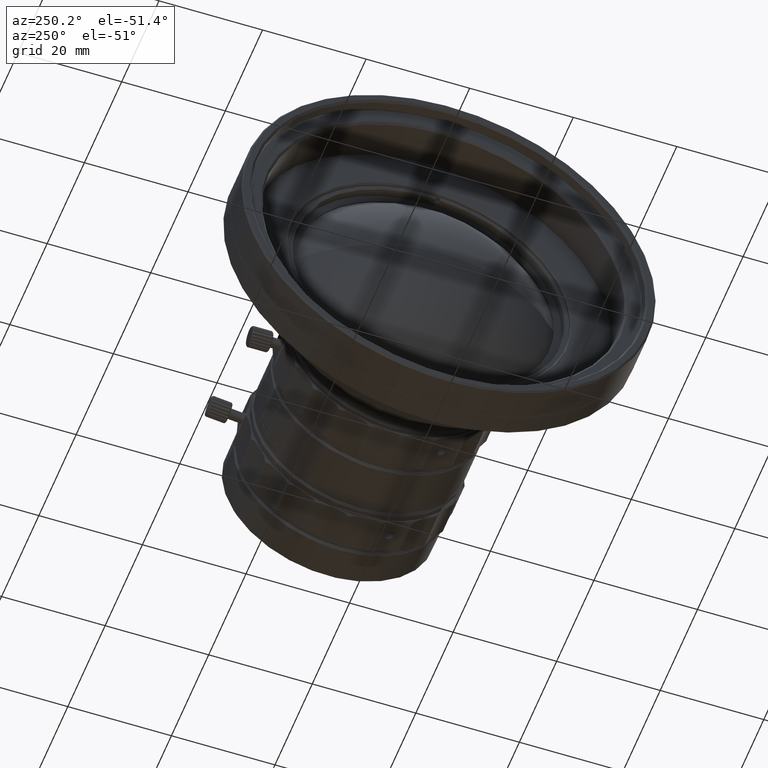
[diagram: clean part render]
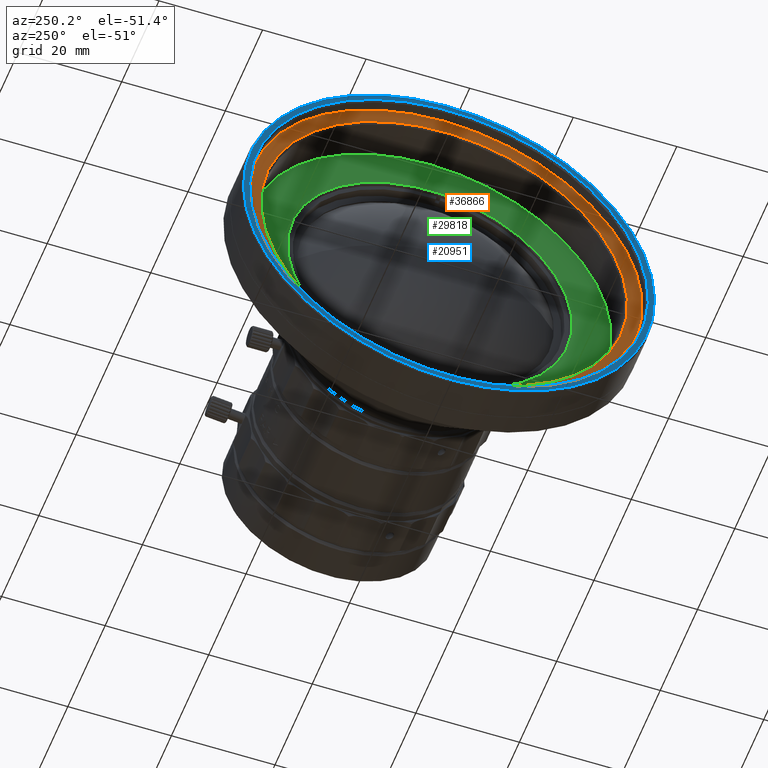
[diagram: same view with three faces highlighted in distinct colors, each labeled with its STEP entity id]
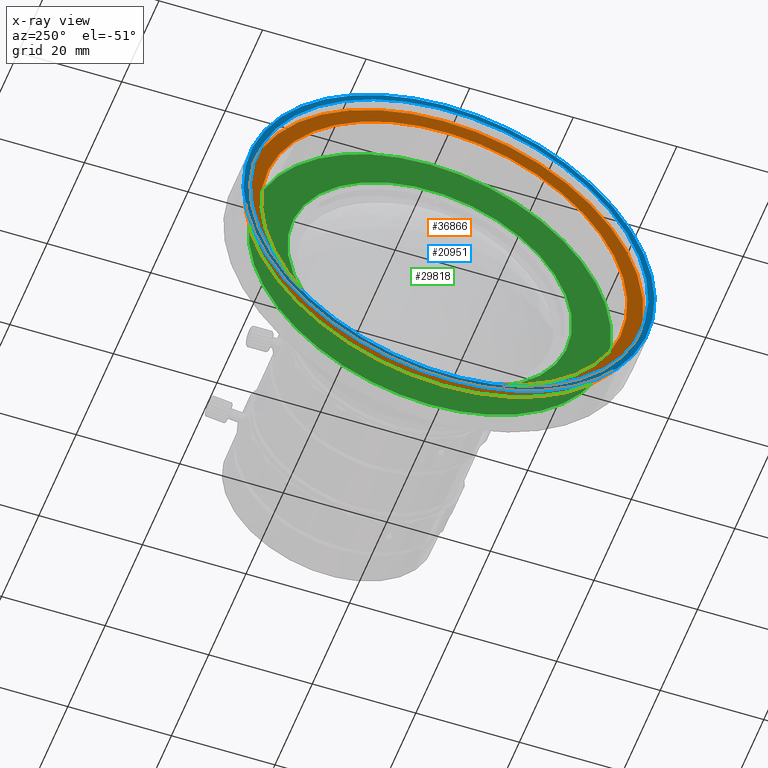
[diagram: x-ray of the same camera — body ghosted, the three highlighted faces saturated]
A machine part, auxiliary view with three faces highlighted in distinct colors.
The next image is the same camera in x-ray (body ghosted, the three faces saturated) — at least one of them is partly hidden behind the body in this view.
Their STEP definitions:

[orange] entity #36866 — the highlighted planar face has unit normal (-1, 0, 0).
#4234 = PLANE ( 'NONE',  #65667 ) ;
#7886 = AXIS2_PLACEMENT_3D ( 'NONE', #25317, #47655, #24533 ) ;
#8384 = EDGE_LOOP ( 'NONE', ( #40853, #56863 ) ) ;
#9079 = AXIS2_PLACEMENT_3D ( 'NONE', #66583, #30901, #31692 ) ;
#9748 = DIRECTION ( 'NONE',  ( 0.000000000000000000, 0.000000000000000000, 1.000000000000000000 ) ) ;
#15186 = AXIS2_PLACEMENT_3D ( 'NONE', #73015, #44728, #55321 ) ;
#15634 = FACE_OUTER_BOUND ( 'NONE', #8384, .T. ) ;
#21613 = CARTESIAN_POINT ( 'NONE',  ( -10.75999999567530629, -10.40094259489243278, -33.83755890769253938 ) ) ;
#22888 = CIRCLE ( 'NONE', #9079, 35.39999999727599800 ) ;
#24533 = DIRECTION ( 'NONE',  ( 4.900348802571447981E-17, -5.641050496054859293E-10, -1.000000000000000000 ) ) ;
#25317 = CARTESIAN_POINT ( 'NONE',  ( -10.75999999727599921, 5.447996016729539883E-09, 4.440892098500630106E-15 ) ) ;
#28962 = ORIENTED_EDGE ( 'NONE', *, *, #35019, .T. ) ;
#28975 = CARTESIAN_POINT ( 'NONE',  ( -10.75999999887669034, 10.40094259583291070, 33.83755891075271904 ) ) ;
#30657 = AXIS2_PLACEMENT_3D ( 'NONE', #61477, #66980, #72881 ) ;
#30901 = DIRECTION ( 'NONE',  ( 1.000000000000000000, 1.538985198720360172E-10, 6.263764974072789394E-17 ) ) ;
#31582 = VERTEX_POINT ( 'NONE', #59829 ) ;
#31692 = DIRECTION ( 'NONE',  ( 4.900348802571447981E-17, -5.641050496054859293E-10, -1.000000000000000000 ) ) ;
#32224 = VERTEX_POINT ( 'NONE', #28975 ) ;
#32434 = EDGE_CURVE ( 'NONE', #32224, #71164, #22888, .T. ) ;
#35019 = EDGE_CURVE ( 'NONE', #71164, #32224, #35485, .T. ) ;
#35485 = CIRCLE ( 'NONE', #7886, 35.39999999727599800 ) ;
#36866 = ADVANCED_FACE ( 'NONE', ( #63090, #15634 ), #4234, .T. ) ;
#37111 = EDGE_CURVE ( 'NONE', #31582, #46214, #64430, .T. ) ;
#40359 = DIRECTION ( 'NONE',  ( -1.000000000000000000, 0.000000000000000000, 0.000000000000000000 ) ) ;
#40853 = ORIENTED_EDGE ( 'NONE', *, *, #37111, .F. ) ;
#44728 = DIRECTION ( 'NONE',  ( 1.000000000000000000, 0.000000000000000000, 0.000000000000000000 ) ) ;
#46214 = VERTEX_POINT ( 'NONE', #74941 ) ;
#47655 = DIRECTION ( 'NONE',  ( 1.000000000000000000, 1.538985198720360172E-10, 6.263764974072789394E-17 ) ) ;
#55321 = DIRECTION ( 'NONE',  ( 0.000000000000000000, -1.722533452797070254E-10, -1.000000000000000000 ) ) ;
#56014 = ORIENTED_EDGE ( 'NONE', *, *, #32434, .T. ) ;
#56863 = ORIENTED_EDGE ( 'NONE', *, *, #59488, .F. ) ;
#59488 = EDGE_CURVE ( 'NONE', #46214, #31582, #72825, .T. ) ;
#59829 = CARTESIAN_POINT ( 'NONE',  ( -10.75999999999999979, -1.052864266378700532E-08, -38.49999999363470238 ) ) ;
#61477 = CARTESIAN_POINT ( 'NONE',  ( -10.75999999999999979, -3.896888871614730075E-09, -4.440892098500630106E-15 ) ) ;
#63090 = FACE_BOUND ( 'NONE', #65232, .T. ) ;
#63472 = CARTESIAN_POINT ( 'NONE',  ( -10.75999999999999979, -38.96199999999999619, 0.000000000000000000 ) ) ;
#64430 = CIRCLE ( 'NONE', #30657, 38.49999999363469527 ) ;
#65232 = EDGE_LOOP ( 'NONE', ( #56014, #28962 ) ) ;
#65667 = AXIS2_PLACEMENT_3D ( 'NONE', #63472, #40359, #9748 ) ;
#66583 = CARTESIAN_POINT ( 'NONE',  ( -10.75999999727599921, 5.447996016729539883E-09, 4.440892098500630106E-15 ) ) ;
#66980 = DIRECTION ( 'NONE',  ( 1.000000000000000000, 0.000000000000000000, 0.000000000000000000 ) ) ;
#71164 = VERTEX_POINT ( 'NONE', #21613 ) ;
#72825 = CIRCLE ( 'NONE', #15186, 38.49999999363469527 ) ;
#72881 = DIRECTION ( 'NONE',  ( 0.000000000000000000, -1.722533452797070254E-10, -1.000000000000000000 ) ) ;
#73015 = CARTESIAN_POINT ( 'NONE',  ( -10.75999999999999979, -3.896888871614730075E-09, -4.440892098500630106E-15 ) ) ;
#74941 = CARTESIAN_POINT ( 'NONE',  ( -10.75999999999999979, 1.579295627444510747E-08, 38.49999999363468817 ) ) ;

[blue] entity #20951 — the highlighted planar face has unit normal (1, 0, 0).
#1538 = CARTESIAN_POINT ( 'NONE',  ( -13.36000000000000121, 1.102734860460640127E-15, 0.000000000000000000 ) ) ;
#1985 = AXIS2_PLACEMENT_3D ( 'NONE', #1538, #47465, #72958 ) ;
#4036 = DIRECTION ( 'NONE',  ( -1.000000000000000000, -9.227827735606190222E-16, 1.267854500162720083E-25 ) ) ;
#4620 = AXIS2_PLACEMENT_3D ( 'NONE', #41762, #46871, #70782 ) ;
#8867 = CARTESIAN_POINT ( 'NONE',  ( -13.36000000000000121, -11.66433392846387207, 37.94777087004302984 ) ) ;
#9204 = CARTESIAN_POINT ( 'NONE',  ( -13.36000000000000121, 11.66433392846522921, -37.94777087004266036 ) ) ;
#9944 = CARTESIAN_POINT ( 'NONE',  ( -13.36000000000000121, -5.238947227171840384E-09, -8.881784197001249168E-15 ) ) ;
#12060 = PLANE ( 'NONE',  #55299 ) ;
#16859 = VERTEX_POINT ( 'NONE', #8867 ) ;
#17182 = CARTESIAN_POINT ( 'NONE',  ( -13.36000000000000121, -40.17640000000000100, 0.000000000000000000 ) ) ;
#18189 = AXIS2_PLACEMENT_3D ( 'NONE', #47826, #25494, #73319 ) ;
#19330 = EDGE_CURVE ( 'NONE', #38659, #38453, #72923, .T. ) ;
#20842 = ORIENTED_EDGE ( 'NONE', *, *, #47809, .T. ) ;
#20951 = ADVANCED_FACE ( 'NONE', ( #66188, #36010 ), #12060, .F. ) ;
#24709 = CARTESIAN_POINT ( 'NONE',  ( -13.36000000000000654, 8.451219527333698522, 37.56097560634967891 ) ) ;
#25494 = DIRECTION ( 'NONE',  ( -1.000000000000000000, 5.593063097997769550E-17, 2.294312989960660113E-26 ) ) ;
#26548 = EDGE_CURVE ( 'NONE', #16859, #59362, #47069, .T. ) ;
#28004 = DIRECTION ( 'NONE',  ( 0.000000000000000000, -1.373946866466330188E-10, -1.000000000000000000 ) ) ;
#31306 = ORIENTED_EDGE ( 'NONE', *, *, #26548, .T. ) ;
#31747 = CARTESIAN_POINT ( 'NONE',  ( -13.35999999999999410, -8.451219527332684223, -37.56097560634992760 ) ) ;
#35364 = EDGE_LOOP ( 'NONE', ( #76699, #36055 ) ) ;
#36010 = FACE_OUTER_BOUND ( 'NONE', #54283, .T. ) ;
#36055 = ORIENTED_EDGE ( 'NONE', *, *, #42413, .F. ) ;
#36400 = DIRECTION ( 'NONE',  ( 1.000000000000000000, 0.000000000000000000, 0.000000000000000000 ) ) ;
#38453 = VERTEX_POINT ( 'NONE', #24709 ) ;
#38659 = VERTEX_POINT ( 'NONE', #31747 ) ;
#41762 = CARTESIAN_POINT ( 'NONE',  ( -13.36000000000000121, -5.238947227171840384E-09, -8.881784197001249168E-15 ) ) ;
#42413 = EDGE_CURVE ( 'NONE', #38453, #38659, #63462, .T. ) ;
#46871 = DIRECTION ( 'NONE',  ( -1.000000000000000000, -9.227827735606190222E-16, 1.267854500162720083E-25 ) ) ;
#47069 = CIRCLE ( 'NONE', #1985, 39.69999999999999574 ) ;
#47465 = DIRECTION ( 'NONE',  ( -1.000000000000000000, 5.593063097997769550E-17, 2.294312989960660113E-26 ) ) ;
#47809 = EDGE_CURVE ( 'NONE', #59362, #16859, #48239, .T. ) ;
#47826 = CARTESIAN_POINT ( 'NONE',  ( -13.36000000000000121, 1.102734860460640127E-15, 0.000000000000000000 ) ) ;
#48239 = CIRCLE ( 'NONE', #18189, 39.69999999999999574 ) ;
#52868 = DIRECTION ( 'NONE',  ( 0.000000000000000000, 1.000000000000000000, 0.000000000000000000 ) ) ;
#54283 = EDGE_LOOP ( 'NONE', ( #20842, #31306 ) ) ;
#55299 = AXIS2_PLACEMENT_3D ( 'NONE', #17182, #36400, #52868 ) ;
#56576 = AXIS2_PLACEMENT_3D ( 'NONE', #9944, #4036, #28004 ) ;
#59362 = VERTEX_POINT ( 'NONE', #9204 ) ;
#63462 = CIRCLE ( 'NONE', #4620, 38.50000000523890265 ) ;
#66188 = FACE_BOUND ( 'NONE', #35364, .T. ) ;
#70782 = DIRECTION ( 'NONE',  ( 0.000000000000000000, -1.373946866466330188E-10, -1.000000000000000000 ) ) ;
#72923 = CIRCLE ( 'NONE', #56576, 38.50000000523890265 ) ;
#72958 = DIRECTION ( 'NONE',  ( 0.000000000000000000, -4.102068848073590473E-10, 1.000000000000000000 ) ) ;
#73319 = DIRECTION ( 'NONE',  ( 0.000000000000000000, -4.102068848073590473E-10, 1.000000000000000000 ) ) ;
#76699 = ORIENTED_EDGE ( 'NONE', *, *, #19330, .F. ) ;

[green] entity #29818 — the highlighted planar face has unit normal (-1, 0, 0).
#890 = CARTESIAN_POINT ( 'NONE',  ( -3.040000000000000036, 8.079828287979658796, 26.28623926766179864 ) ) ;
#2586 = CARTESIAN_POINT ( 'NONE',  ( -3.040000000000000036, -35.42000000000000171, 0.000000000000000000 ) ) ;
#3024 = CARTESIAN_POINT ( 'NONE',  ( -3.040000000000000036, 4.196818994439447678E-14, -34.99999999421340391 ) ) ;
#4354 = CARTESIAN_POINT ( 'NONE',  ( -3.040000000000000036, -4.003981590692649598E-15, -4.440892098500630106E-15 ) ) ;
#7710 = FACE_BOUND ( 'NONE', #38363, .T. ) ;
#8869 = PLANE ( 'NONE',  #26486 ) ;
#9869 = DIRECTION ( 'NONE',  ( 0.000000000000000000, -4.102067114313319273E-10, -1.000000000000000000 ) ) ;
#10720 = AXIS2_PLACEMENT_3D ( 'NONE', #4354, #34200, #9869 ) ;
#12155 = ORIENTED_EDGE ( 'NONE', *, *, #40430, .F. ) ;
#16297 = DIRECTION ( 'NONE',  ( 1.000000000000000000, -4.758098678063039624E-17, 8.195971713884179761E-27 ) ) ;
#17141 = EDGE_CURVE ( 'NONE', #29476, #68660, #75207, .T. ) ;
#17159 = DIRECTION ( 'NONE',  ( 0.000000000000000000, -4.102067114313319273E-10, -1.000000000000000000 ) ) ;
#17610 = CARTESIAN_POINT ( 'NONE',  ( -3.040000000000000036, -8.079828287978260803, -26.28623926766228891 ) ) ;
#18324 = AXIS2_PLACEMENT_3D ( 'NONE', #39927, #57545, #17159 ) ;
#23168 = VERTEX_POINT ( 'NONE', #17610 ) ;
#26118 = EDGE_CURVE ( 'NONE', #31939, #23168, #33249, .T. ) ;
#26486 = AXIS2_PLACEMENT_3D ( 'NONE', #2586, #55938, #61835 ) ;
#26676 = ORIENTED_EDGE ( 'NONE', *, *, #17141, .F. ) ;
#28860 = AXIS2_PLACEMENT_3D ( 'NONE', #66478, #72763, #48838 ) ;
#29476 = VERTEX_POINT ( 'NONE', #42357 ) ;
#29818 = ADVANCED_FACE ( 'NONE', ( #7710, #43442 ), #8869, .T. ) ;
#31939 = VERTEX_POINT ( 'NONE', #890 ) ;
#33249 = CIRCLE ( 'NONE', #10720, 27.50000000000000000 ) ;
#34200 = DIRECTION ( 'NONE',  ( 1.000000000000000000, 0.000000000000000000, 0.000000000000000000 ) ) ;
#34581 = CIRCLE ( 'NONE', #18324, 27.50000000000000000 ) ;
#38363 = EDGE_LOOP ( 'NONE', ( #59923, #47636 ) ) ;
#39927 = CARTESIAN_POINT ( 'NONE',  ( -3.040000000000000036, -4.003981590692649598E-15, -4.440892098500630106E-15 ) ) ;
#40430 = EDGE_CURVE ( 'NONE', #68660, #29476, #57022, .T. ) ;
#42357 = CARTESIAN_POINT ( 'NONE',  ( -3.040000000000000036, -2.928554602768000690E-19, 34.99999999421340391 ) ) ;
#43442 = FACE_OUTER_BOUND ( 'NONE', #72092, .T. ) ;
#47636 = ORIENTED_EDGE ( 'NONE', *, *, #69888, .T. ) ;
#48838 = DIRECTION ( 'NONE',  ( 0.000000000000000000, -1.722530840243239661E-10, -1.000000000000000000 ) ) ;
#54517 = AXIS2_PLACEMENT_3D ( 'NONE', #64133, #16297, #63340 ) ;
#55938 = DIRECTION ( 'NONE',  ( -1.000000000000000000, 0.000000000000000000, 0.000000000000000000 ) ) ;
#57022 = CIRCLE ( 'NONE', #54517, 34.99999999421340391 ) ;
#57545 = DIRECTION ( 'NONE',  ( 1.000000000000000000, 0.000000000000000000, 0.000000000000000000 ) ) ;
#59923 = ORIENTED_EDGE ( 'NONE', *, *, #26118, .T. ) ;
#61835 = DIRECTION ( 'NONE',  ( 0.000000000000000000, 0.000000000000000000, 1.000000000000000000 ) ) ;
#63340 = DIRECTION ( 'NONE',  ( 0.000000000000000000, -1.722530840243239661E-10, -1.000000000000000000 ) ) ;
#64133 = CARTESIAN_POINT ( 'NONE',  ( -3.040000000000000036, -3.542635390860879971E-09, 0.000000000000000000 ) ) ;
#66478 = CARTESIAN_POINT ( 'NONE',  ( -3.040000000000000036, -3.542635390860879971E-09, 0.000000000000000000 ) ) ;
#68660 = VERTEX_POINT ( 'NONE', #3024 ) ;
#69888 = EDGE_CURVE ( 'NONE', #23168, #31939, #34581, .T. ) ;
#72092 = EDGE_LOOP ( 'NONE', ( #26676, #12155 ) ) ;
#72763 = DIRECTION ( 'NONE',  ( 1.000000000000000000, -4.758098678063039624E-17, 8.195971713884179761E-27 ) ) ;
#75207 = CIRCLE ( 'NONE', #28860, 34.99999999421340391 ) ;